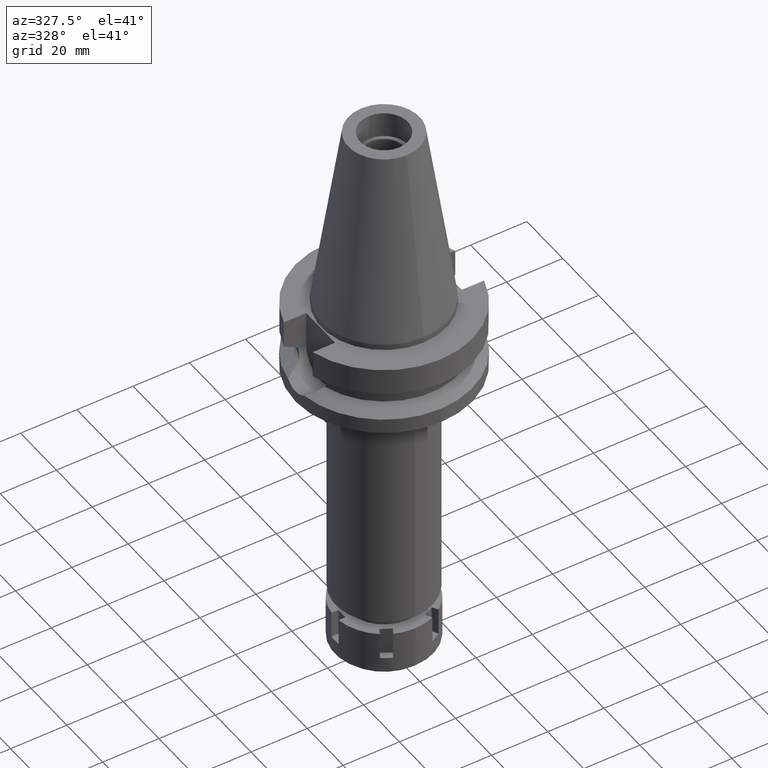
[diagram: clean part render]
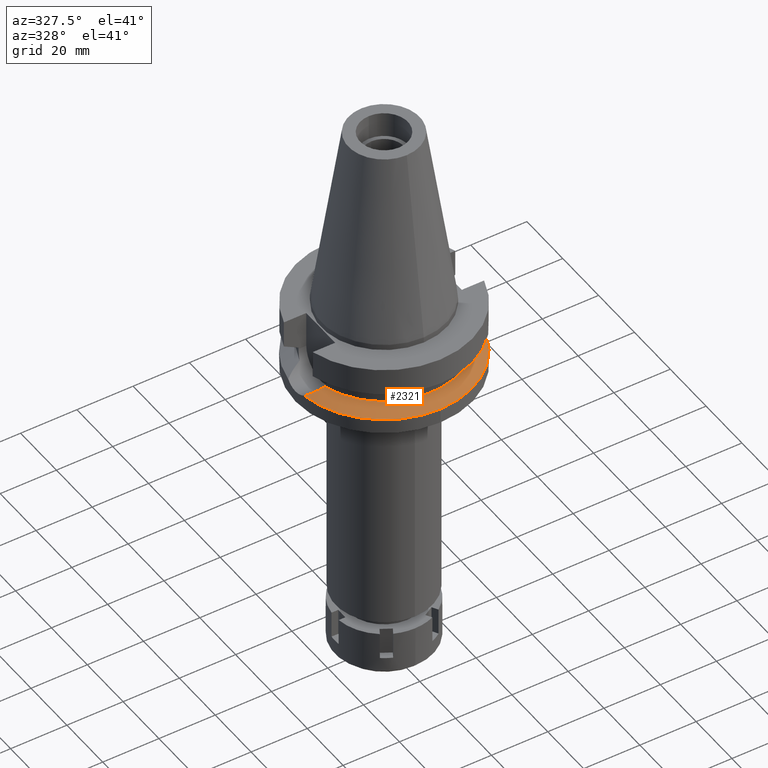
[diagram: same view with one face highlighted and labeled with its STEP entity id]
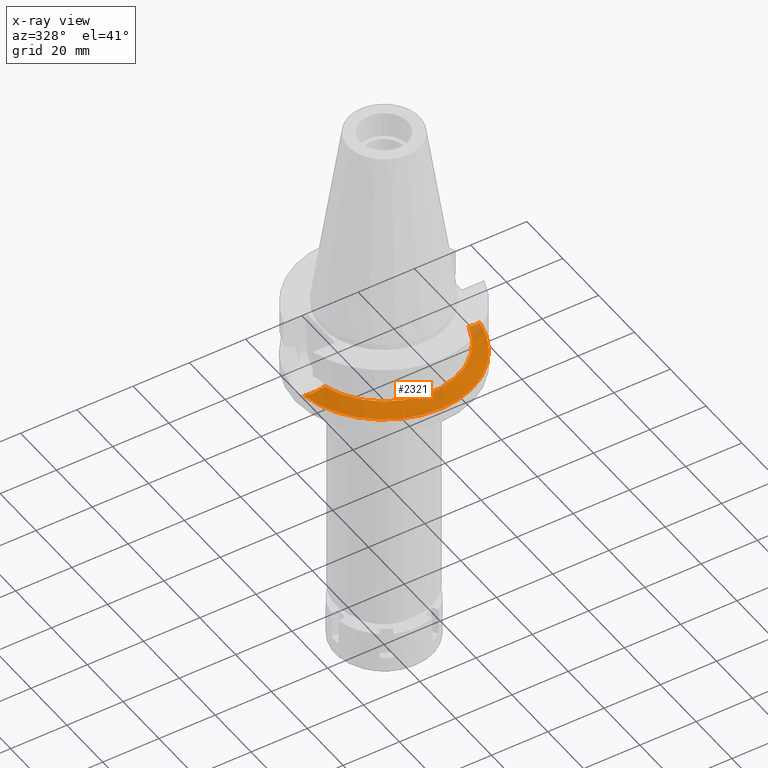
[diagram: x-ray of the same camera — body ghosted, the highlighted face saturated]
A machine part, auxiliary view. The second image highlights one B-rep face of the part: STEP entity #2321.
The next image is the same camera in x-ray: the body ghosted, the highlighted face saturated — about 4% of this face is hidden behind the body in this view.
In plain terms, the highlighted conical surface has half-angle 60 deg.
Its self-contained STEP definition (entity closure, byte-faithful):
#56 = EDGE_CURVE ( 'NONE', #1124, #2846, #2374, .T. ) ;
#86 = CARTESIAN_POINT ( 'NONE',  ( 0.0000000000000000000, 0.0000000000000000000, -21.63449434733000132 ) ) ;
#133 = CARTESIAN_POINT ( 'NONE',  ( -30.82005802125926053, -4.757853331962620835, -21.45175977684344204 ) ) ;
#149 = CARTESIAN_POINT ( 'NONE',  ( -31.17899877608999759, -4.485536235554000051, -21.63449434733000132 ) ) ;
#187 = CARTESIAN_POINT ( 'NONE',  ( -26.67045637361477617, -6.784851855676520493, -19.33274952744005049 ) ) ;
#213 = CARTESIAN_POINT ( 'NONE',  ( 26.16677172481894331, -6.923306134641333820, -19.07398283482425327 ) ) ;
#260 = CARTESIAN_POINT ( 'NONE',  ( 28.71231193688716488, -5.946370304206068269, -20.37674525064341680 ) ) ;
#320 = EDGE_CURVE ( 'NONE', #1873, #1124, #584, .T. ) ;
#402 = CARTESIAN_POINT ( 'NONE',  ( -25.53175183775000079, -7.097862220092999941, -18.74774300138999905 ) ) ;
#403 = DIRECTION ( 'NONE',  ( 0.0000000000000000000, 0.0000000000000000000, -1.000000000000000000 ) ) ;
#434 = ORIENTED_EDGE ( 'NONE', *, *, #56, .F. ) ;
#470 = CARTESIAN_POINT ( 'NONE',  ( -28.54918954969343758, -6.020515500902670070, -20.29377433759710314 ) ) ;
#584 = B_SPLINE_CURVE_WITH_KNOTS ( 'NONE', 3,
 ( #149, #133, #2903, #1779, #3510, #1529, #2117, #1849, #1579, #2129, #689, #470, #1265, #2695, #187, #402 ),
 .UNSPECIFIED., .F., .F.,
 ( 4, 2, 2, 1, 1, 1, 1, 2, 2, 4 ),
 ( 0.0000000000000000000, 0.2500000000000404676, 0.3750000000000597300, 0.4375000000000687783, 0.4687500000000728861, 0.4843750000000742739, 0.4921875000000752731, 0.4960937500000748845, 0.5000000000000743849, 1.000000000000000000 ),
 .UNSPECIFIED. ) ;
#689 = CARTESIAN_POINT ( 'NONE',  ( -28.56549659549861175, -6.013109637102619587, -20.30210646007292041 ) ) ;
#837 = CARTESIAN_POINT ( 'NONE',  ( 30.52696754882432018, -4.980211883784410709, -21.30254918743210624 ) ) ;
#958 = CARTESIAN_POINT ( 'NONE',  ( 0.0000000000000000000, 0.0000000000000000000, -20.19111867435999841 ) ) ;
#1105 = CARTESIAN_POINT ( 'NONE',  ( 28.59247162745020887, -6.001678045002388551, -20.31555038891481502 ) ) ;
#1124 = VERTEX_POINT ( 'NONE', #2935 ) ;
#1265 = CARTESIAN_POINT ( 'NONE',  ( -28.53958704710133887, -6.024866072819778928, -20.28886785031032503 ) ) ;
#1397 = CARTESIAN_POINT ( 'NONE',  ( 26.75887090737320406, -6.731812282059665087, -19.37779480163946388 ) ) ;
#1483 = VERTEX_POINT ( 'NONE', #2244 ) ;
#1492 = CARTESIAN_POINT ( 'NONE',  ( 0.0000000000000000000, 0.0000000000000000000, -18.74774300138999905 ) ) ;
#1517 = DIRECTION ( 'NONE',  ( 0.0000000000000000000, 0.0000000000000000000, -1.000000000000000000 ) ) ;
#1529 = CARTESIAN_POINT ( 'NONE',  ( -29.16621656368036142, -5.725961587741553060, -20.60893161952021657 ) ) ;
#1579 = CARTESIAN_POINT ( 'NONE',  ( -28.64672120530456922, -5.975982986601521496, -20.34360679410525563 ) ) ;
#1707 = CIRCLE ( 'NONE', #2233, 31.50000000000000000 ) ;
#1762 = CARTESIAN_POINT ( 'NONE',  ( 25.53175183775000079, -7.097862220092999941, -18.74774300138999905 ) ) ;
#1779 = CARTESIAN_POINT ( 'NONE',  ( -29.75853886646849489, -5.412615462309983805, -20.91115859126954746 ) ) ;
#1849 = CARTESIAN_POINT ( 'NONE',  ( -28.75946772946377550, -5.923705605265533691, -20.40120750052599874 ) ) ;
#1854 = ORIENTED_EDGE ( 'NONE', *, *, #2674, .F. ) ;
#1873 = VERTEX_POINT ( 'NONE', #2534 ) ;
#1876 = CIRCLE ( 'NONE', #2170, 31.50000000000001421 ) ;
#1972 = DIRECTION ( 'NONE',  ( 0.0000000000000000000, 0.0000000000000000000, 1.000000000000000000 ) ) ;
#2025 = DIRECTION ( 'NONE',  ( 0.0000000000000000000, -1.000000000000000000, 0.0000000000000000000 ) ) ;
#2057 = ORIENTED_EDGE ( 'NONE', *, *, #320, .F. ) ;
#2081 = CARTESIAN_POINT ( 'NONE',  ( 0.0000000000000000000, -31.50000000000000000, -21.63449434733000132 ) ) ;
#2116 = CONICAL_SURFACE ( 'NONE', #2280, 29.00000000000000000, 1.047197551196400456 ) ;
#2117 = CARTESIAN_POINT ( 'NONE',  ( -28.98159406623724976, -5.818130233333441481, -20.51466856790898419 ) ) ;
#2129 = CARTESIAN_POINT ( 'NONE',  ( -28.58992710428187323, -6.001991389248821029, -20.31458913630327956 ) ) ;
#2170 = AXIS2_PLACEMENT_3D ( 'NONE', #2535, #2252, #2565 ) ;
#2233 = AXIS2_PLACEMENT_3D ( 'NONE', #86, #1517, #3139 ) ;
#2244 = CARTESIAN_POINT ( 'NONE',  ( 31.17899877608999759, -4.485536235554000051, -21.63449434733000132 ) ) ;
#2252 = DIRECTION ( 'NONE',  ( 0.0000000000000000000, 0.0000000000000000000, -1.000000000000000000 ) ) ;
#2280 = AXIS2_PLACEMENT_3D ( 'NONE', #958, #403, #3531 ) ;
#2321 = ADVANCED_FACE ( 'NONE', ( #2904 ), #2116, .T. ) ;
#2371 = VERTEX_POINT ( 'NONE', #2081 ) ;
#2374 = CIRCLE ( 'NONE', #3159, 26.50000000000000000 ) ;
#2497 = CARTESIAN_POINT ( 'NONE',  ( 31.17899877608999759, -4.485536235554000051, -21.63449434733000132 ) ) ;
#2534 = CARTESIAN_POINT ( 'NONE',  ( -31.17899877608999759, -4.485536235554000051, -21.63449434733000132 ) ) ;
#2535 = CARTESIAN_POINT ( 'NONE',  ( 0.0000000000000000000, 0.0000000000000000000, -21.63449434733000132 ) ) ;
#2565 = DIRECTION ( 'NONE',  ( 0.9898094849552905306, -0.1423979757318985240, 0.0000000000000000000 ) ) ;
#2674 = EDGE_CURVE ( 'NONE', #1483, #2371, #1876, .T. ) ;
#2695 = CARTESIAN_POINT ( 'NONE',  ( -27.67082324235268942, -6.417777303599806693, -19.84496065951570287 ) ) ;
#2699 = EDGE_LOOP ( 'NONE', ( #2870, #1854, #3021, #434, #2057 ) ) ;
#2800 = CARTESIAN_POINT ( 'NONE',  ( 28.35007291681643338, -6.110099198719653124, -20.19175143569905018 ) ) ;
#2846 = VERTEX_POINT ( 'NONE', #1762 ) ;
#2870 = ORIENTED_EDGE ( 'NONE', *, *, #3224, .F. ) ;
#2892 = B_SPLINE_CURVE_WITH_KNOTS ( 'NONE', 3,
 ( #3017, #213, #1397, #3335, #3099, #3633, #2800, #1105, #260, #3083, #837, #2497 ),
 .UNSPECIFIED., .F., .F.,
 ( 4, 2, 2, 2, 2, 4 ),
 ( 0.0000000000000000000, 0.2500000000000001665, 0.3750000000000002220, 0.4374999999999999445, 0.4999999999999996669, 1.000000000000000000 ),
 .UNSPECIFIED. ) ;
#2903 = CARTESIAN_POINT ( 'NONE',  ( -30.42007544950005027, -5.025060322218655173, -21.24829662134768782 ) ) ;
#2904 = FACE_OUTER_BOUND ( 'NONE', #2699, .T. ) ;
#2935 = CARTESIAN_POINT ( 'NONE',  ( -25.53175183775000079, -7.097862220092999941, -18.74774300138999905 ) ) ;
#3017 = CARTESIAN_POINT ( 'NONE',  ( 25.53175183775000079, -7.097862220092999941, -18.74774300138999905 ) ) ;
#3021 = ORIENTED_EDGE ( 'NONE', *, *, #3542, .F. ) ;
#3083 = CARTESIAN_POINT ( 'NONE',  ( 29.74290885879015178, -5.456387302565613773, -20.90305815966738479 ) ) ;
#3099 = CARTESIAN_POINT ( 'NONE',  ( 27.84649768732370845, -6.323433956480011275, -19.93444919573942897 ) ) ;
#3139 = DIRECTION ( 'NONE',  ( 0.0000000000000000000, -1.000000000000000000, 0.0000000000000000000 ) ) ;
#3159 = AXIS2_PLACEMENT_3D ( 'NONE', #1492, #1972, #2025 ) ;
#3224 = EDGE_CURVE ( 'NONE', #2371, #1873, #1707, .T. ) ;
#3335 = CARTESIAN_POINT ( 'NONE',  ( 27.58263862443258319, -6.427650130155488917, -19.79952107489913260 ) ) ;
#3510 = CARTESIAN_POINT ( 'NONE',  ( -29.52776621789251266, -5.539584721979489146, -20.79346419710108762 ) ) ;
#3531 = DIRECTION ( 'NONE',  ( 0.0000000000000000000, -1.000000000000000000, 0.0000000000000000000 ) ) ;
#3542 = EDGE_CURVE ( 'NONE', #2846, #1483, #2892, .T. ) ;
#3633 = CARTESIAN_POINT ( 'NONE',  ( 28.22619101746738224, -6.163841846333452779, -20.12847143374437309 ) ) ;